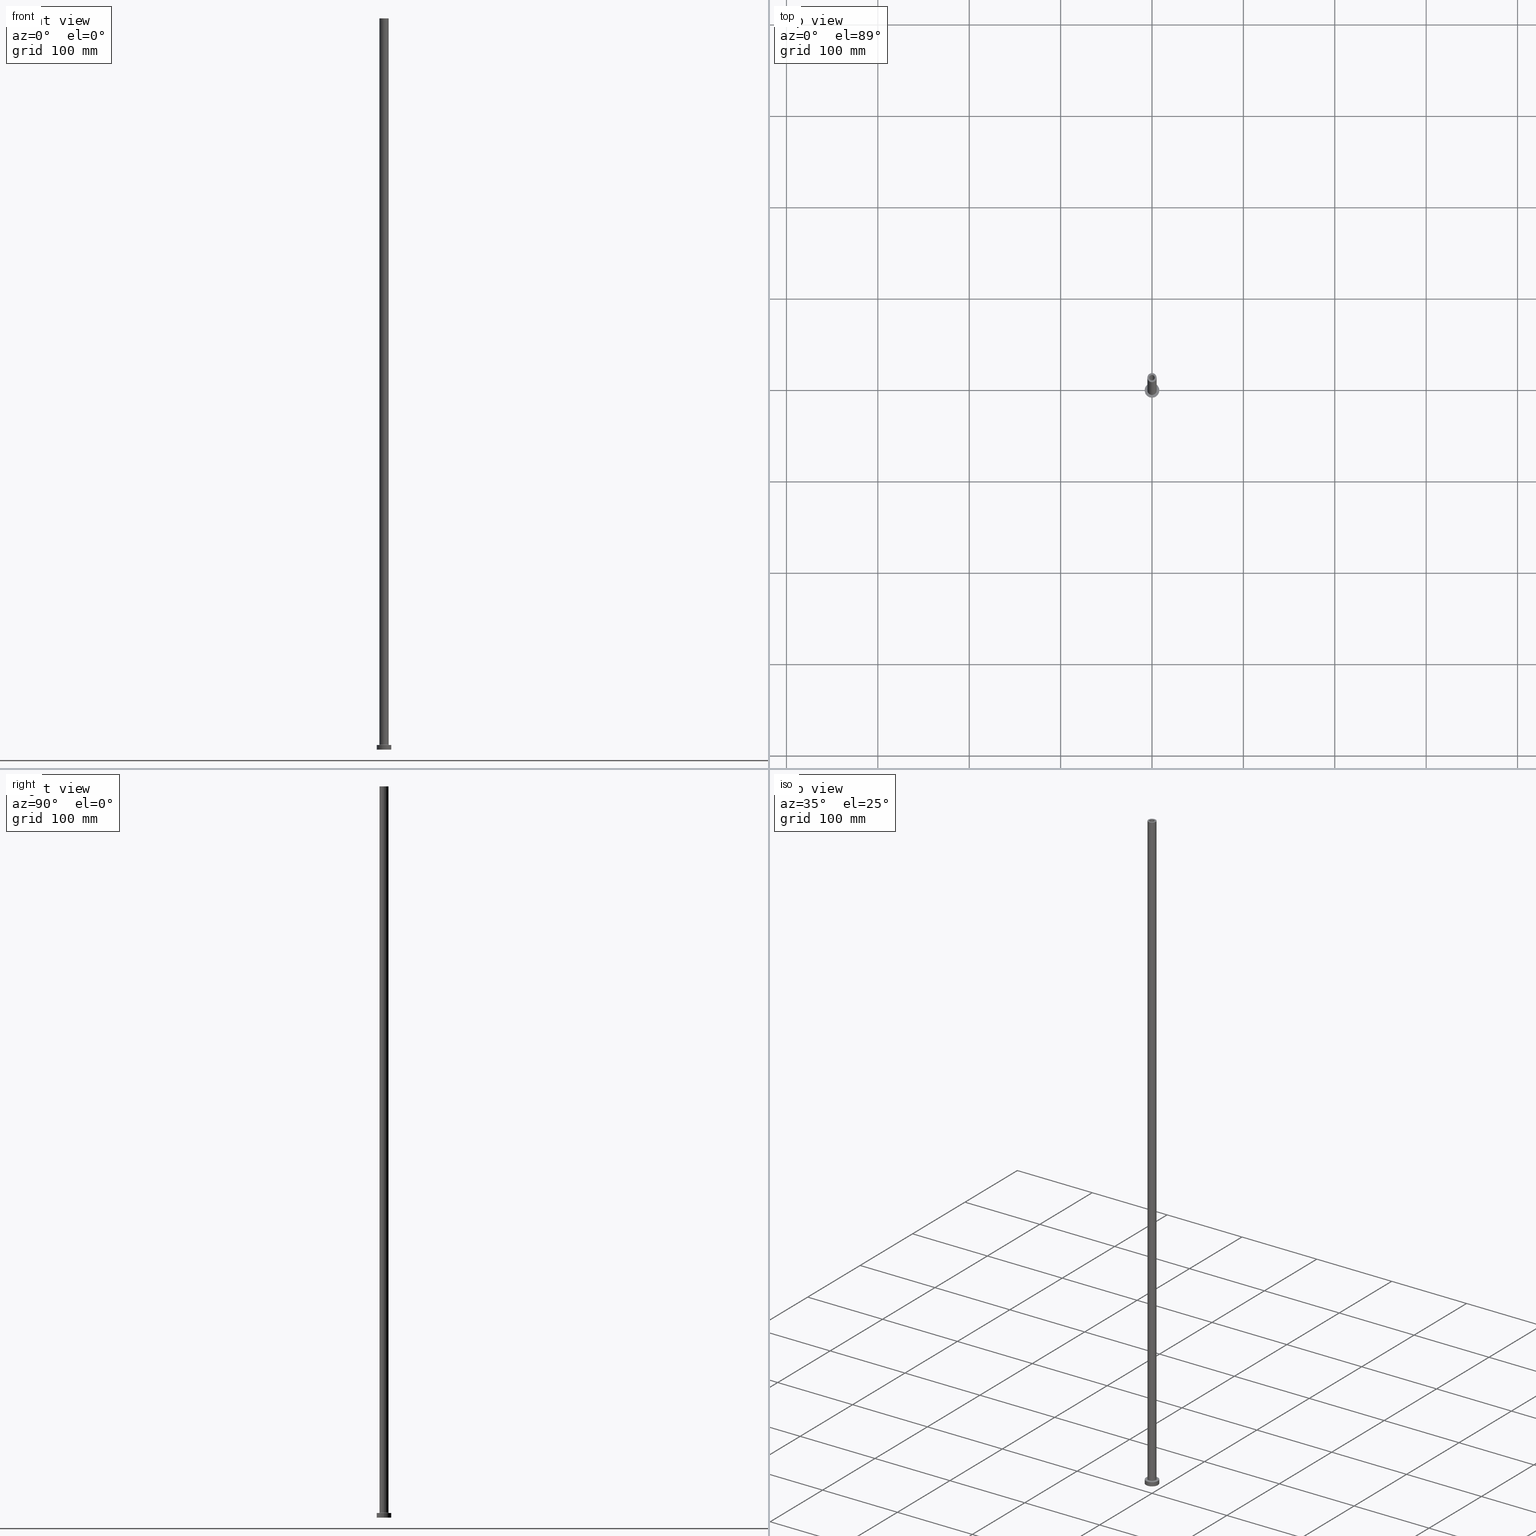
[diagram: canonical four-view strip — front | top / right | iso, engineering-drawing reading convention]
A machine part, canonical four-view strip (front | top / right | iso — engineering-drawing reading convention). The complete STEP part file that produces these views, byte-faithful:
ISO-10303-21;
HEADER;
FILE_DESCRIPTION (( 'STEP AP203' ),
    '1' );
FILE_NAME ('d898.STEP',
    '2023-02-13T15:28:38',
    ( '' ),
    ( '' ),
    'SwSTEP 2.0',
    'SolidWorks 2019',
    '' );
FILE_SCHEMA (( 'CONFIG_CONTROL_DESIGN' ));
ENDSEC;

DATA;
#1 = DIRECTION ( 'NONE',  ( -1.000000000000000000, 0.000000000000000000, 0.000000000000000000 ) ) ;
#2 = PERSON_AND_ORGANIZATION ( #380, #193 ) ;
#3 = PRODUCT_DEFINITION_SHAPE ( 'NONE', 'NONE',  #243 ) ;
#4 = EDGE_CURVE ( 'NONE', #36, #454, #199, .T. ) ;
#5 = CARTESIAN_POINT ( 'NONE',  ( 0.000000000000000000, 0.000000000000000000, 5.499999999999949374 ) ) ;
#6 = CIRCLE ( 'NONE', #30, 3.000000000000000444 ) ;
#7 = DIRECTION ( 'NONE',  ( -1.000000000000000000, 0.000000000000000000, 0.000000000000000000 ) ) ;
#8 = DIRECTION ( 'NONE',  ( -0.000000000000000000, -0.000000000000000000, -1.000000000000000000 ) ) ;
#9 = APPROVAL_STATUS ( 'not_yet_approved' ) ;
#10 = CARTESIAN_POINT ( 'NONE',  ( -3.000000000000000444, 0.000000000000000000, 755.0000000000000000 ) ) ;
#11 = ORIENTED_EDGE ( 'NONE', *, *, #351, .T. ) ;
#12 = ADVANCED_FACE ( 'NONE', ( #151 ), #294, .T. ) ;
#13 = CARTESIAN_POINT ( 'NONE',  ( 0.000000000000000000, 0.000000000000000000, 800.0000000000000000 ) ) ;
#14 = CARTESIAN_POINT ( 'NONE',  ( 3.000000000000000444, 3.673940397442060361E-16, 800.0000000000000000 ) ) ;
#15 = CIRCLE ( 'NONE', #274, 5.000000000000000000 ) ;
#16 = CIRCLE ( 'NONE', #179, 5.500000000000000000 ) ;
#17 = CARTESIAN_POINT ( 'NONE',  ( -5.000000000000000000, 0.000000000000000000, 5.499999999999949374 ) ) ;
#18 = FACE_OUTER_BOUND ( 'NONE', #117, .T. ) ;
#19 = CARTESIAN_POINT ( 'NONE',  ( -5.000000000000000000, 0.000000000000000000, 800.0000000000000000 ) ) ;
#20 = DIRECTION ( 'NONE',  ( 0.000000000000000000, 0.000000000000000000, 1.000000000000000000 ) ) ;
#21 = ORIENTED_EDGE ( 'NONE', *, *, #80, .T. ) ;
#22 = EDGE_CURVE ( 'NONE', #454, #36, #15, .T. ) ;
#23 = FACE_BOUND ( 'NONE', #299, .T. ) ;
#24 = AXIS2_PLACEMENT_3D ( 'NONE', #256, #368, #369 ) ;
#25 = AXIS2_PLACEMENT_3D ( 'NONE', #153, #287, #110 ) ;
#26 = ADVANCED_FACE ( 'NONE', ( #18 ), #408, .F. ) ;
#27 = ORIENTED_EDGE ( 'NONE', *, *, #407, .T. ) ;
#28 = EDGE_LOOP ( 'NONE', ( #214, #84 ) ) ;
#29 = COORDINATED_UNIVERSAL_TIME_OFFSET ( 1, 0, .AHEAD. ) ;
#30 = AXIS2_PLACEMENT_3D ( 'NONE', #416, #222, #258 ) ;
#31 = LOCAL_TIME ( 16, 28, 38.00000000000000000, #46 ) ;
#32 = DIRECTION ( 'NONE',  ( -0.000000000000000000, -0.000000000000000000, -1.000000000000000000 ) ) ;
#33 = ORIENTED_EDGE ( 'NONE', *, *, #216, .T. ) ;
#34 = PERSON_AND_ORGANIZATION_ROLE ( 'creator' ) ;
#35 = DATE_AND_TIME ( #233, #457 ) ;
#36 = VERTEX_POINT ( 'NONE', #377 ) ;
#37 = APPROVAL ( #98, 'NEUR�EN�' ) ;
#38 = DIRECTION ( 'NONE',  ( 1.000000000000000000, 0.000000000000000000, 0.000000000000000000 ) ) ;
#39 = CIRCLE ( 'NONE', #144, 0.5000000000000004441 ) ;
#40 = CARTESIAN_POINT ( 'NONE',  ( 0.000000000000000000, 0.000000000000000000, 763.9095454429503889 ) ) ;
#41 = CARTESIAN_POINT ( 'NONE',  ( 0.000000000000000000, 0.000000000000000000, 0.000000000000000000 ) ) ;
#42 = CALENDAR_DATE ( 2023, 13, 2 ) ;
#43 = CARTESIAN_POINT ( 'NONE',  ( -5.500000000000000000, 6.735557395310442023E-16, 5.499999999999949374 ) ) ;
#44 = ORIENTED_EDGE ( 'NONE', *, *, #313, .T. ) ;
#45 = CARTESIAN_POINT ( 'NONE',  ( -3.000000000000000444, 0.000000000000000000, 800.0000000000000000 ) ) ;
#46 = COORDINATED_UNIVERSAL_TIME_OFFSET ( 1, 0, .AHEAD. ) ;
#47 = VECTOR ( 'NONE', #87, 1000.000000000000000 ) ;
#48 = CARTESIAN_POINT ( 'NONE',  ( 5.500000000000000000, 0.000000000000000000, 5.499999999999949374 ) ) ;
#49 = DATE_TIME_ROLE ( 'classification_date' ) ;
#50 = EDGE_LOOP ( 'NONE', ( #66, #128 ) ) ;
#51 = FACE_BOUND ( 'NONE', #410, .T. ) ;
#52 = CYLINDRICAL_SURFACE ( 'NONE', #152, 8.000000000000000000 ) ;
#53 = DIRECTION ( 'NONE',  ( -0.000000000000000000, -0.000000000000000000, -1.000000000000000000 ) ) ;
#54 = AXIS2_PLACEMENT_3D ( 'NONE', #180, #254, #440 ) ;
#55 = CIRCLE ( 'NONE', #130, 3.000000000000000444 ) ;
#56 = CARTESIAN_POINT ( 'NONE',  ( 8.000000000000000000, 9.797174393178825657E-16, 5.000000000000000000 ) ) ;
#57 = EDGE_CURVE ( 'NONE', #350, #426, #58, .T. ) ;
#58 = LINE ( 'NONE', #262, #123 ) ;
#59 = DIRECTION ( 'NONE',  ( 1.000000000000000000, 0.000000000000000000, 0.000000000000000000 ) ) ;
#60 = ORIENTED_EDGE ( 'NONE', *, *, #216, .F. ) ;
#61 = EDGE_CURVE ( 'NONE', #312, #400, #268, .T. ) ;
#62 = DIRECTION ( 'NONE',  ( 0.000000000000000000, 0.000000000000000000, 1.000000000000000000 ) ) ;
#63 = ORIENTED_EDGE ( 'NONE', *, *, #111, .T. ) ;
#64 = DIRECTION ( 'NONE',  ( -1.000000000000000000, 0.000000000000000000, 0.000000000000000000 ) ) ;
#65 = AXIS2_PLACEMENT_3D ( 'NONE', #290, #226, #59 ) ;
#66 = ORIENTED_EDGE ( 'NONE', *, *, #4, .T. ) ;
#67 = ORIENTED_EDGE ( 'NONE', *, *, #297, .F. ) ;
#68 = VERTEX_POINT ( 'NONE', #10 ) ;
#69 = APPROVAL_DATE_TIME ( #95, #450 ) ;
#70 = ORIENTED_EDGE ( 'NONE', *, *, #324, .T. ) ;
#71 = DIRECTION ( 'NONE',  ( 0.000000000000000000, 0.000000000000000000, 1.000000000000000000 ) ) ;
#72 = CC_DESIGN_PERSON_AND_ORGANIZATION_ASSIGNMENT ( #390, #163, ( #328 ) ) ;
#73 = LINE ( 'NONE', #249, #114 ) ;
#74 = DIRECTION ( 'NONE',  ( -0.000000000000000000, -0.000000000000000000, -1.000000000000000000 ) ) ;
#75 = ORIENTED_EDGE ( 'NONE', *, *, #111, .F. ) ;
#76 = PERSON_AND_ORGANIZATION ( #380, #193 ) ;
#77 = DIRECTION ( 'NONE',  ( -1.000000000000000000, 0.000000000000000000, 0.000000000000000000 ) ) ;
#78 = CYLINDRICAL_SURFACE ( 'NONE', #124, 5.000000000000000000 ) ;
#79 = APPROVAL_ROLE ( '' ) ;
#80 = EDGE_CURVE ( 'NONE', #426, #142, #129, .T. ) ;
#81 = CARTESIAN_POINT ( 'NONE',  ( 0.000000000000000000, 0.000000000000000000, 0.000000000000000000 ) ) ;
#82 = ADVANCED_FACE ( 'NONE', ( #116 ), #320, .F. ) ;
#83 = CARTESIAN_POINT ( 'NONE',  ( 0.000000000000000000, 0.000000000000000000, 5.000000000000000000 ) ) ;
#84 = ORIENTED_EDGE ( 'NONE', *, *, #61, .F. ) ;
#85 = CARTESIAN_POINT ( 'NONE',  ( 3.150000000000000355, 3.857637417314163182E-16, 763.9095454429503889 ) ) ;
#86 = AXIS2_PLACEMENT_3D ( 'NONE', #277, #174, #431 ) ;
#87 = DIRECTION ( 'NONE',  ( 0.000000000000000000, 0.000000000000000000, -1.000000000000000000 ) ) ;
#88 = ORIENTED_EDGE ( 'NONE', *, *, #80, .F. ) ;
#89 = CARTESIAN_POINT ( 'NONE',  ( 3.150000000000000355, 3.857637417314163182E-16, 0.000000000000000000 ) ) ;
#90 = EDGE_LOOP ( 'NONE', ( #389, #345, #266, #318 ) ) ;
#91 = AXIS2_PLACEMENT_3D ( 'NONE', #423, #234, #230 ) ;
#92 = CARTESIAN_POINT ( 'NONE',  ( 0.000000000000000000, 0.000000000000000000, 763.9095454429503889 ) ) ;
#93 = ORIENTED_EDGE ( 'NONE', *, *, #280, .F. ) ;
#94 = ORIENTED_EDGE ( 'NONE', *, *, #430, .F. ) ;
#95 = DATE_AND_TIME ( #311, #270 ) ;
#96 = EDGE_CURVE ( 'NONE', #227, #350, #455, .T. ) ;
#97 = EDGE_LOOP ( 'NONE', ( #165, #310, #27, #44 ) ) ;
#98 = APPROVAL_STATUS ( 'not_yet_approved' ) ;
#99 = AXIS2_PLACEMENT_3D ( 'NONE', #40, #317, #1 ) ;
#100 = CARTESIAN_POINT ( 'NONE',  ( 0.000000000000000000, 0.000000000000000000, 755.0000000000000000 ) ) ;
#101 = CARTESIAN_POINT ( 'NONE',  ( -5.500000000000000000, 6.735557395310442023E-16, 4.999999999999975131 ) ) ;
#102 = ADVANCED_FACE ( 'NONE', ( #156, #399 ), #293, .T. ) ;
#103 = LINE ( 'NONE', #398, #365 ) ;
#104 = PERSON_AND_ORGANIZATION_ROLE ( 'design_supplier' ) ;
#105 = CIRCLE ( 'NONE', #217, 5.000000000000000000 ) ;
#106 = CC_DESIGN_SECURITY_CLASSIFICATION ( #335, ( #132 ) ) ;
#107 = EDGE_LOOP ( 'NONE', ( #223, #63, #248, #202 ) ) ;
#108 = DATE_AND_TIME ( #210, #276 ) ;
#109 = FACE_OUTER_BOUND ( 'NONE', #204, .T. ) ;
#110 = DIRECTION ( 'NONE',  ( 1.000000000000000000, 0.000000000000000000, 0.000000000000000000 ) ) ;
#111 = EDGE_CURVE ( 'NONE', #232, #386, #39, .T. ) ;
#112 = DIRECTION ( 'NONE',  ( 0.000000000000000000, 0.000000000000000000, 1.000000000000000000 ) ) ;
#113 = DIRECTION ( 'NONE',  ( -0.000000000000000000, -0.000000000000000000, -1.000000000000000000 ) ) ;
#114 = VECTOR ( 'NONE', #8, 1000.000000000000000 ) ;
#115 = ORIENTED_EDGE ( 'NONE', *, *, #96, .F. ) ;
#116 = FACE_OUTER_BOUND ( 'NONE', #107, .T. ) ;
#117 = EDGE_LOOP ( 'NONE', ( #33, #264, #379, #67 ) ) ;
#118 = DIRECTION ( 'NONE',  ( -0.000000000000000000, -0.000000000000000000, -1.000000000000000000 ) ) ;
#119 = EDGE_LOOP ( 'NONE', ( #342, #11 ) ) ;
#120 = CARTESIAN_POINT ( 'NONE',  ( 5.500000000000000000, 0.000000000000000000, 4.999999999999975131 ) ) ;
#121 = ADVANCED_BREP_SHAPE_REPRESENTATION ( 'd898', ( #326, #186 ), #343 ) ;
#122 = LINE ( 'NONE', #19, #231 ) ;
#123 = VECTOR ( 'NONE', #286, 1000.000000000000000 ) ;
#124 = AXIS2_PLACEMENT_3D ( 'NONE', #363, #361, #7 ) ;
#125 = FACE_OUTER_BOUND ( 'NONE', #28, .T. ) ;
#126 = ORIENTED_EDGE ( 'NONE', *, *, #183, .F. ) ;
#127 = APPLICATION_CONTEXT ( 'configuration controlled 3d designs of mechanical parts and assemblies' ) ;
#128 = ORIENTED_EDGE ( 'NONE', *, *, #22, .T. ) ;
#129 = CIRCLE ( 'NONE', #396, 3.150000000000000355 ) ;
#130 = AXIS2_PLACEMENT_3D ( 'NONE', #228, #447, #159 ) ;
#131 = EDGE_LOOP ( 'NONE', ( #60, #171 ) ) ;
#132 = PRODUCT_DEFINITION_FORMATION_WITH_SPECIFIED_SOURCE ( 'LIBOVOLN�', '', #328, .NOT_KNOWN. ) ;
#133 = DIRECTION ( 'NONE',  ( 0.000000000000000000, 0.000000000000000000, 1.000000000000000000 ) ) ;
#134 = ORIENTED_EDGE ( 'NONE', *, *, #430, .T. ) ;
#135 = APPROVAL_ROLE ( '' ) ;
#136 = EDGE_CURVE ( 'NONE', #232, #352, #105, .T. ) ;
#137 = ORIENTED_EDGE ( 'NONE', *, *, #434, .T. ) ;
#138 = CARTESIAN_POINT ( 'NONE',  ( 0.000000000000000000, 0.000000000000000000, 0.000000000000000000 ) ) ;
#139 = CIRCLE ( 'NONE', #405, 3.000000000000000444 ) ;
#140 = DIRECTION ( 'NONE',  ( 0.000000000000000000, 0.000000000000000000, -1.000000000000000000 ) ) ;
#141 = COORDINATED_UNIVERSAL_TIME_OFFSET ( 1, 0, .AHEAD. ) ;
#142 = VERTEX_POINT ( 'NONE', #89 ) ;
#143 = DIRECTION ( 'NONE',  ( 0.000000000000000000, 0.000000000000000000, 1.000000000000000000 ) ) ;
#144 = AXIS2_PLACEMENT_3D ( 'NONE', #43, #284, #157 ) ;
#145 = LINE ( 'NONE', #245, #391 ) ;
#146 = APPLICATION_CONTEXT ( 'configuration controlled 3d designs of mechanical parts and assemblies' ) ;
#147 = CC_DESIGN_PERSON_AND_ORGANIZATION_ASSIGNMENT ( #250, #402, ( #132 ) ) ;
#148 = ORIENTED_EDGE ( 'NONE', *, *, #22, .F. ) ;
#149 = DIRECTION ( 'NONE',  ( -0.000000000000000000, -0.000000000000000000, -1.000000000000000000 ) ) ;
#150 = DIRECTION ( 'NONE',  ( 1.000000000000000000, 0.000000000000000000, 0.000000000000000000 ) ) ;
#151 = FACE_OUTER_BOUND ( 'NONE', #191, .T. ) ;
#152 = AXIS2_PLACEMENT_3D ( 'NONE', #325, #330, #298 ) ;
#153 = CARTESIAN_POINT ( 'NONE',  ( 0.000000000000000000, 0.000000000000000000, 5.000000000000000000 ) ) ;
#154 = LOCAL_TIME ( 16, 28, 38.00000000000000000, #141 ) ;
#155 =( NAMED_UNIT ( * ) SI_UNIT ( $, .STERADIAN. ) SOLID_ANGLE_UNIT ( ) );
#156 = FACE_BOUND ( 'NONE', #119, .T. ) ;
#157 = DIRECTION ( 'NONE',  ( -1.000000000000000000, 1.224646799147351482E-16, 0.000000000000000000 ) ) ;
#158 = ORIENTED_EDGE ( 'NONE', *, *, #303, .T. ) ;
#159 = DIRECTION ( 'NONE',  ( 1.000000000000000000, 0.000000000000000000, 0.000000000000000000 ) ) ;
#160 = EDGE_CURVE ( 'NONE', #454, #352, #409, .T. ) ;
#161 = CIRCLE ( 'NONE', #167, 3.150000000000000355 ) ;
#162 = CARTESIAN_POINT ( 'NONE',  ( -8.000000000000000000, 0.000000000000000000, 5.000000000000000000 ) ) ;
#163 = PERSON_AND_ORGANIZATION_ROLE ( 'design_owner' ) ;
#164 = FACE_OUTER_BOUND ( 'NONE', #251, .T. ) ;
#165 = ORIENTED_EDGE ( 'NONE', *, *, #324, .F. ) ;
#166 = CYLINDRICAL_SURFACE ( 'NONE', #436, 3.150000000000000355 ) ;
#167 = AXIS2_PLACEMENT_3D ( 'NONE', #100, #285, #439 ) ;
#168 = ORIENTED_EDGE ( 'NONE', *, *, #434, .F. ) ;
#169 = EDGE_CURVE ( 'NONE', #68, #375, #55, .T. ) ;
#170 = EDGE_LOOP ( 'NONE', ( #240, #134 ) ) ;
#171 = ORIENTED_EDGE ( 'NONE', *, *, #267, .F. ) ;
#172 = ADVANCED_FACE ( 'NONE', ( #23, #125 ), #296, .F. ) ;
#173 = FACE_OUTER_BOUND ( 'NONE', #427, .T. ) ;
#174 = DIRECTION ( 'NONE',  ( 0.000000000000000000, 0.000000000000000000, 1.000000000000000000 ) ) ;
#175 = ORIENTED_EDGE ( 'NONE', *, *, #160, .F. ) ;
#176 = CARTESIAN_POINT ( 'NONE',  ( -3.150000000000000355, 0.000000000000000000, 755.0000000000000000 ) ) ;
#177 = CALENDAR_DATE ( 2023, 13, 2 ) ;
#178 = EDGE_CURVE ( 'NONE', #194, #386, #347, .T. ) ;
#179 = AXIS2_PLACEMENT_3D ( 'NONE', #212, #149, #38 ) ;
#180 = CARTESIAN_POINT ( 'NONE',  ( 0.000000000000000000, 0.000000000000000000, 0.000000000000000000 ) ) ;
#181 = ORIENTED_EDGE ( 'NONE', *, *, #183, .T. ) ;
#182 = DATE_TIME_ROLE ( 'creation_date' ) ;
#183 = EDGE_CURVE ( 'NONE', #227, #142, #374, .T. ) ;
#184 = AXIS2_PLACEMENT_3D ( 'NONE', #5, #406, #371 ) ;
#185 = CARTESIAN_POINT ( 'NONE',  ( 0.000000000000000000, 0.000000000000000000, 755.0000000000000000 ) ) ;
#186 = AXIS2_PLACEMENT_3D ( 'NONE', #138, #71, #205 ) ;
#187 = DIRECTION ( 'NONE',  ( 0.000000000000000000, 0.000000000000000000, 1.000000000000000000 ) ) ;
#188 = CARTESIAN_POINT ( 'NONE',  ( 0.000000000000000000, 0.000000000000000000, 5.499999999999949374 ) ) ;
#189 = DIRECTION ( 'NONE',  ( -0.000000000000000000, -0.000000000000000000, -1.000000000000000000 ) ) ;
#190 = PLANE ( 'NONE',  #292 ) ;
#191 = EDGE_LOOP ( 'NONE', ( #94, #70, #360, #458 ) ) ;
#192 = CC_DESIGN_DATE_AND_TIME_ASSIGNMENT ( #321, #49, ( #335 ) ) ;
#193 = ORGANIZATION ( 'NEUR�EN�', 'NEUR�EN�', '' ) ;
#194 = VERTEX_POINT ( 'NONE', #120 ) ;
#195 = CARTESIAN_POINT ( 'NONE',  ( 0.000000000000000000, 0.000000000000000000, 800.0000000000000000 ) ) ;
#196 = EDGE_CURVE ( 'NONE', #375, #68, #6, .T. ) ;
#197 = VERTEX_POINT ( 'NONE', #56 ) ;
#198 = APPROVAL_ROLE ( '' ) ;
#199 = CIRCLE ( 'NONE', #24, 5.000000000000000000 ) ;
#200 = DIRECTION ( 'NONE',  ( 1.000000000000000000, 0.000000000000000000, 0.000000000000000000 ) ) ;
#201 = CIRCLE ( 'NONE', #300, 3.150000000000000355 ) ;
#202 = ORIENTED_EDGE ( 'NONE', *, *, #303, .F. ) ;
#203 = PERSON_AND_ORGANIZATION ( #380, #193 ) ;
#204 = EDGE_LOOP ( 'NONE', ( #75, #93, #158, #259 ) ) ;
#205 = DIRECTION ( 'NONE',  ( 1.000000000000000000, 0.000000000000000000, 0.000000000000000000 ) ) ;
#206 = DIRECTION ( 'NONE',  ( -1.000000000000000000, 0.000000000000000000, 0.000000000000000000 ) ) ;
#207 = PERSON_AND_ORGANIZATION ( #380, #193 ) ;
#208 = CYLINDRICAL_SURFACE ( 'NONE', #449, 3.000000000000000444 ) ;
#209 = AXIS2_PLACEMENT_3D ( 'NONE', #372, #113, #77 ) ;
#210 = CALENDAR_DATE ( 2023, 13, 2 ) ;
#211 = TOROIDAL_SURFACE ( 'NONE', #86, 5.500000000000000000, 0.5000000000000000000 ) ;
#212 = CARTESIAN_POINT ( 'NONE',  ( 0.000000000000000000, 0.000000000000000000, 5.000000000000000000 ) ) ;
#213 = CARTESIAN_POINT ( 'NONE',  ( 0.000000000000000000, 0.000000000000000000, 5.000000000000000000 ) ) ;
#214 = ORIENTED_EDGE ( 'NONE', *, *, #313, .F. ) ;
#215 = PERSON_AND_ORGANIZATION_ROLE ( 'classification_officer' ) ;
#216 = EDGE_CURVE ( 'NONE', #340, #419, #139, .T. ) ;
#217 = AXIS2_PLACEMENT_3D ( 'NONE', #188, #370, #218 ) ;
#218 = DIRECTION ( 'NONE',  ( 1.000000000000000000, 0.000000000000000000, 0.000000000000000000 ) ) ;
#219 = ADVANCED_FACE ( 'NONE', ( #51, #378 ), #190, .F. ) ;
#220 = CARTESIAN_POINT ( 'NONE',  ( 0.000000000000000000, 0.000000000000000000, 800.0000000000000000 ) ) ;
#221 = VERTEX_POINT ( 'NONE', #162 ) ;
#222 = DIRECTION ( 'NONE',  ( 0.000000000000000000, 0.000000000000000000, 1.000000000000000000 ) ) ;
#223 = ORIENTED_EDGE ( 'NONE', *, *, #136, .F. ) ;
#224 = DIRECTION ( 'NONE',  ( -1.000000000000000000, 0.000000000000000000, 0.000000000000000000 ) ) ;
#225 = FACE_OUTER_BOUND ( 'NONE', #97, .T. ) ;
#226 = DIRECTION ( 'NONE',  ( 0.000000000000000000, 0.000000000000000000, 1.000000000000000000 ) ) ;
#227 = VERTEX_POINT ( 'NONE', #327 ) ;
#228 = CARTESIAN_POINT ( 'NONE',  ( 0.000000000000000000, 0.000000000000000000, 755.0000000000000000 ) ) ;
#229 = APPROVAL ( #9, 'NEUR�EN�' ) ;
#230 = DIRECTION ( 'NONE',  ( 1.000000000000000000, 0.000000000000000000, -0.000000000000000000 ) ) ;
#231 = VECTOR ( 'NONE', #118, 1000.000000000000000 ) ;
#232 = VERTEX_POINT ( 'NONE', #17 ) ;
#233 = CALENDAR_DATE ( 2023, 13, 2 ) ;
#234 = DIRECTION ( 'NONE',  ( 0.000000000000000000, 0.000000000000000000, 1.000000000000000000 ) ) ;
#235 = ORIENTED_EDGE ( 'NONE', *, *, #160, .T. ) ;
#236 = DIRECTION ( 'NONE',  ( 1.000000000000000000, 0.000000000000000000, 0.000000000000000000 ) ) ;
#237 = ORIENTED_EDGE ( 'NONE', *, *, #362, .F. ) ;
#238 = SHAPE_DEFINITION_REPRESENTATION ( #3, #121 ) ;
#239 = CIRCLE ( 'NONE', #261, 8.000000000000000000 ) ;
#240 = ORIENTED_EDGE ( 'NONE', *, *, #241, .T. ) ;
#241 = EDGE_CURVE ( 'NONE', #221, #197, #308, .T. ) ;
#242 = FACE_OUTER_BOUND ( 'NONE', #90, .T. ) ;
#243 = PRODUCT_DEFINITION ( 'NEZN�M�', '', #132, #452 ) ;
#244 = DIRECTION ( 'NONE',  ( 1.000000000000000000, 0.000000000000000000, 0.000000000000000000 ) ) ;
#245 = CARTESIAN_POINT ( 'NONE',  ( 3.000000000000000444, 3.673940397442060361E-16, 800.0000000000000000 ) ) ;
#246 = VECTOR ( 'NONE', #255, 1000.000000000000000 ) ;
#247 = ADVANCED_FACE ( 'NONE', ( #301, #441 ), #453, .T. ) ;
#248 = ORIENTED_EDGE ( 'NONE', *, *, #178, .F. ) ;
#249 = CARTESIAN_POINT ( 'NONE',  ( 8.000000000000000000, 9.797174393178825657E-16, 5.000000000000000000 ) ) ;
#250 = PERSON_AND_ORGANIZATION ( #380, #193 ) ;
#251 = EDGE_LOOP ( 'NONE', ( #424, #181, #435, #273 ) ) ;
#252 = CARTESIAN_POINT ( 'NONE',  ( 8.000000000000000000, 9.797174393178825657E-16, 0.000000000000000000 ) ) ;
#253 = ADVANCED_FACE ( 'NONE', ( #164 ), #166, .F. ) ;
#254 = DIRECTION ( 'NONE',  ( 0.000000000000000000, 0.000000000000000000, 1.000000000000000000 ) ) ;
#255 = DIRECTION ( 'NONE',  ( -0.000000000000000000, -0.000000000000000000, -1.000000000000000000 ) ) ;
#256 = CARTESIAN_POINT ( 'NONE',  ( 0.000000000000000000, 0.000000000000000000, 800.0000000000000000 ) ) ;
#257 = CARTESIAN_POINT ( 'NONE',  ( 0.000000000000000000, 0.000000000000000000, 800.0000000000000000 ) ) ;
#258 = DIRECTION ( 'NONE',  ( 1.000000000000000000, 0.000000000000000000, 0.000000000000000000 ) ) ;
#259 = ORIENTED_EDGE ( 'NONE', *, *, #351, .F. ) ;
#260 = AXIS2_PLACEMENT_3D ( 'NONE', #213, #443, #359 ) ;
#261 = AXIS2_PLACEMENT_3D ( 'NONE', #41, #143, #244 ) ;
#262 = CARTESIAN_POINT ( 'NONE',  ( -3.150000000000000355, 0.000000000000000000, 763.9095454429503889 ) ) ;
#263 = CC_DESIGN_PERSON_AND_ORGANIZATION_ASSIGNMENT ( #203, #34, ( #243 ) ) ;
#264 = ORIENTED_EDGE ( 'NONE', *, *, #344, .T. ) ;
#265 = CARTESIAN_POINT ( 'NONE',  ( 5.000000000000000000, 6.123233995736766282E-16, 800.0000000000000000 ) ) ;
#266 = ORIENTED_EDGE ( 'NONE', *, *, #297, .T. ) ;
#267 = EDGE_CURVE ( 'NONE', #419, #340, #322, .T. ) ;
#268 = CIRCLE ( 'NONE', #54, 8.000000000000000000 ) ;
#269 = AXIS2_PLACEMENT_3D ( 'NONE', #83, #53, #381 ) ;
#270 = LOCAL_TIME ( 16, 28, 38.00000000000000000, #29 ) ;
#271 = ORIENTED_EDGE ( 'NONE', *, *, #136, .T. ) ;
#272 = ORIENTED_EDGE ( 'NONE', *, *, #96, .T. ) ;
#273 = ORIENTED_EDGE ( 'NONE', *, *, #57, .F. ) ;
#274 = AXIS2_PLACEMENT_3D ( 'NONE', #404, #329, #289 ) ;
#275 = CC_DESIGN_PERSON_AND_ORGANIZATION_ASSIGNMENT ( #279, #104, ( #132 ) ) ;
#276 = LOCAL_TIME ( 16, 28, 38.00000000000000000, #358 ) ;
#277 = CARTESIAN_POINT ( 'NONE',  ( 0.000000000000000000, 0.000000000000000000, 5.499999999999949374 ) ) ;
#278 = CARTESIAN_POINT ( 'NONE',  ( -8.000000000000000000, 0.000000000000000000, 0.000000000000000000 ) ) ;
#279 = PERSON_AND_ORGANIZATION ( #380, #193 ) ;
#280 = EDGE_CURVE ( 'NONE', #352, #232, #376, .T. ) ;
#281 = EDGE_LOOP ( 'NONE', ( #126, #272, #459, #21 ) ) ;
#282 = DIRECTION ( 'NONE',  ( 0.000000000000000000, 0.000000000000000000, -1.000000000000000000 ) ) ;
#283 = VECTOR ( 'NONE', #140, 1000.000000000000000 ) ;
#284 = DIRECTION ( 'NONE',  ( 1.224646799147353207E-16, 1.000000000000000000, -0.000000000000000000 ) ) ;
#285 = DIRECTION ( 'NONE',  ( 0.000000000000000000, 0.000000000000000000, 1.000000000000000000 ) ) ;
#286 = DIRECTION ( 'NONE',  ( 0.000000000000000000, 0.000000000000000000, -1.000000000000000000 ) ) ;
#287 = DIRECTION ( 'NONE',  ( 0.000000000000000000, 0.000000000000000000, 1.000000000000000000 ) ) ;
#288 = EDGE_CURVE ( 'NONE', #142, #426, #201, .T. ) ;
#289 = DIRECTION ( 'NONE',  ( 1.000000000000000000, 0.000000000000000000, 0.000000000000000000 ) ) ;
#290 = CARTESIAN_POINT ( 'NONE',  ( 0.000000000000000000, 0.000000000000000000, 5.000000000000000000 ) ) ;
#291 =( LENGTH_UNIT ( ) NAMED_UNIT ( * ) SI_UNIT ( .MILLI., .METRE. ) );
#292 = AXIS2_PLACEMENT_3D ( 'NONE', #331, #187, #337 ) ;
#293 = PLANE ( 'NONE',  #260 ) ;
#294 = CYLINDRICAL_SURFACE ( 'NONE', #209, 8.000000000000000000 ) ;
#295 = CYLINDRICAL_SURFACE ( 'NONE', #421, 5.000000000000000000 ) ;
#296 = PLANE ( 'NONE',  #456 ) ;
#297 = EDGE_CURVE ( 'NONE', #340, #68, #323, .T. ) ;
#298 = DIRECTION ( 'NONE',  ( -1.000000000000000000, 0.000000000000000000, 0.000000000000000000 ) ) ;
#299 = EDGE_LOOP ( 'NONE', ( #88, #346 ) ) ;
#300 = AXIS2_PLACEMENT_3D ( 'NONE', #349, #32, #319 ) ;
#301 = FACE_BOUND ( 'NONE', #131, .T. ) ;
#302 = CARTESIAN_POINT ( 'NONE',  ( 5.000000000000000000, 6.123233995736766282E-16, 800.0000000000000000 ) ) ;
#303 = EDGE_CURVE ( 'NONE', #352, #194, #397, .T. ) ;
#304 = PERSON_AND_ORGANIZATION ( #380, #193 ) ;
#305 = ORIENTED_EDGE ( 'NONE', *, *, #4, .F. ) ;
#306 = COORDINATED_UNIVERSAL_TIME_OFFSET ( 1, 0, .AHEAD. ) ;
#307 = AXIS2_PLACEMENT_3D ( 'NONE', #185, #112, #336 ) ;
#308 = CIRCLE ( 'NONE', #65, 8.000000000000000000 ) ;
#309 = CARTESIAN_POINT ( 'NONE',  ( 0.000000000000000000, 0.000000000000000000, 5.499999999999949374 ) ) ;
#310 = ORIENTED_EDGE ( 'NONE', *, *, #241, .F. ) ;
#311 = CALENDAR_DATE ( 2023, 13, 2 ) ;
#312 = VERTEX_POINT ( 'NONE', #252 ) ;
#313 = EDGE_CURVE ( 'NONE', #400, #312, #239, .T. ) ;
#314 = DIRECTION ( 'NONE',  ( 0.000000000000000000, -1.000000000000000000, 0.000000000000000000 ) ) ;
#315 = AXIS2_PLACEMENT_3D ( 'NONE', #48, #314, #282 ) ;
#316 = DATE_AND_TIME ( #42, #154 ) ;
#317 = DIRECTION ( 'NONE',  ( 0.000000000000000000, 0.000000000000000000, -1.000000000000000000 ) ) ;
#318 = ORIENTED_EDGE ( 'NONE', *, *, #196, .F. ) ;
#319 = DIRECTION ( 'NONE',  ( 1.000000000000000000, 0.000000000000000000, 0.000000000000000000 ) ) ;
#320 = TOROIDAL_SURFACE ( 'NONE', #184, 5.500000000000000000, 0.5000000000000000000 ) ;
#321 = DATE_AND_TIME ( #177, #31 ) ;
#322 = CIRCLE ( 'NONE', #414, 3.000000000000000444 ) ;
#323 = LINE ( 'NONE', #401, #283 ) ;
#324 = EDGE_CURVE ( 'NONE', #197, #312, #73, .T. ) ;
#325 = CARTESIAN_POINT ( 'NONE',  ( 0.000000000000000000, 0.000000000000000000, 5.000000000000000000 ) ) ;
#326 = MANIFOLD_SOLID_BREP ( 'Odebrat vysunut�m4', #413 ) ;
#327 = CARTESIAN_POINT ( 'NONE',  ( 3.150000000000000355, 3.857637417314163182E-16, 755.0000000000000000 ) ) ;
#328 = PRODUCT ( 'd898', 'd898', '', ( #353 ) ) ;
#329 = DIRECTION ( 'NONE',  ( 0.000000000000000000, 0.000000000000000000, 1.000000000000000000 ) ) ;
#330 = DIRECTION ( 'NONE',  ( -0.000000000000000000, -0.000000000000000000, -1.000000000000000000 ) ) ;
#331 = CARTESIAN_POINT ( 'NONE',  ( 0.000000000000000000, 0.000000000000000000, 755.0000000000000000 ) ) ;
#332 = AXIS2_PLACEMENT_3D ( 'NONE', #13, #411, #224 ) ;
#333 =( NAMED_UNIT ( * ) PLANE_ANGLE_UNIT ( ) SI_UNIT ( $, .RADIAN. ) );
#334 = CC_DESIGN_APPROVAL ( #450, ( #243 ) ) ;
#335 = SECURITY_CLASSIFICATION ( '', '', #364 ) ;
#336 = DIRECTION ( 'NONE',  ( 1.000000000000000000, 0.000000000000000000, 0.000000000000000000 ) ) ;
#337 = DIRECTION ( 'NONE',  ( 1.000000000000000000, 0.000000000000000000, -0.000000000000000000 ) ) ;
#338 = ORIENTED_EDGE ( 'NONE', *, *, #169, .T. ) ;
#339 = ADVANCED_FACE ( 'NONE', ( #173 ), #78, .T. ) ;
#340 = VERTEX_POINT ( 'NONE', #45 ) ;
#341 = DIRECTION ( 'NONE',  ( 1.000000000000000000, 0.000000000000000000, -0.000000000000000000 ) ) ;
#342 = ORIENTED_EDGE ( 'NONE', *, *, #178, .T. ) ;
#343 =( GEOMETRIC_REPRESENTATION_CONTEXT ( 3 ) GLOBAL_UNCERTAINTY_ASSIGNED_CONTEXT ( ( #460 ) ) GLOBAL_UNIT_ASSIGNED_CONTEXT ( ( #291, #333, #155 ) ) REPRESENTATION_CONTEXT ( 'NONE', 'WORKASPACE' ) );
#344 = EDGE_CURVE ( 'NONE', #419, #375, #145, .T. ) ;
#345 = ORIENTED_EDGE ( 'NONE', *, *, #267, .T. ) ;
#346 = ORIENTED_EDGE ( 'NONE', *, *, #288, .F. ) ;
#347 = CIRCLE ( 'NONE', #269, 5.500000000000000000 ) ;
#348 = CC_DESIGN_APPROVAL ( #37, ( #335 ) ) ;
#349 = CARTESIAN_POINT ( 'NONE',  ( 0.000000000000000000, 0.000000000000000000, 0.000000000000000000 ) ) ;
#350 = VERTEX_POINT ( 'NONE', #176 ) ;
#351 = EDGE_CURVE ( 'NONE', #386, #194, #16, .T. ) ;
#352 = VERTEX_POINT ( 'NONE', #429 ) ;
#353 = MECHANICAL_CONTEXT ( 'NONE', #146, 'mechanical' ) ;
#354 = CARTESIAN_POINT ( 'NONE',  ( 3.000000000000000444, 3.673940397442060361E-16, 755.0000000000000000 ) ) ;
#355 = CYLINDRICAL_SURFACE ( 'NONE', #99, 3.150000000000000355 ) ;
#356 = APPROVAL_PERSON_ORGANIZATION ( #207, #450, #198 ) ;
#357 = APPROVAL_PERSON_ORGANIZATION ( #2, #229, #79 ) ;
#358 = COORDINATED_UNIVERSAL_TIME_OFFSET ( 1, 0, .AHEAD. ) ;
#359 = DIRECTION ( 'NONE',  ( 1.000000000000000000, 0.000000000000000000, -0.000000000000000000 ) ) ;
#360 = ORIENTED_EDGE ( 'NONE', *, *, #61, .T. ) ;
#361 = DIRECTION ( 'NONE',  ( -0.000000000000000000, -0.000000000000000000, -1.000000000000000000 ) ) ;
#362 = EDGE_CURVE ( 'NONE', #350, #227, #161, .T. ) ;
#363 = CARTESIAN_POINT ( 'NONE',  ( 0.000000000000000000, 0.000000000000000000, 800.0000000000000000 ) ) ;
#364 = SECURITY_CLASSIFICATION_LEVEL ( 'unclassified' ) ;
#365 = VECTOR ( 'NONE', #74, 1000.000000000000000 ) ;
#366 = CC_DESIGN_PERSON_AND_ORGANIZATION_ASSIGNMENT ( #76, #215, ( #335 ) ) ;
#367 = DIRECTION ( 'NONE',  ( -0.000000000000000000, -0.000000000000000000, -1.000000000000000000 ) ) ;
#368 = DIRECTION ( 'NONE',  ( 0.000000000000000000, 0.000000000000000000, 1.000000000000000000 ) ) ;
#369 = DIRECTION ( 'NONE',  ( 1.000000000000000000, 0.000000000000000000, 0.000000000000000000 ) ) ;
#370 = DIRECTION ( 'NONE',  ( 0.000000000000000000, 0.000000000000000000, 1.000000000000000000 ) ) ;
#371 = DIRECTION ( 'NONE',  ( 1.000000000000000000, 0.000000000000000000, 0.000000000000000000 ) ) ;
#372 = CARTESIAN_POINT ( 'NONE',  ( 0.000000000000000000, 0.000000000000000000, 5.000000000000000000 ) ) ;
#373 = ADVANCED_FACE ( 'NONE', ( #242 ), #208, .F. ) ;
#374 = LINE ( 'NONE', #85, #47 ) ;
#375 = VERTEX_POINT ( 'NONE', #354 ) ;
#376 = CIRCLE ( 'NONE', #442, 5.000000000000000000 ) ;
#377 = CARTESIAN_POINT ( 'NONE',  ( -5.000000000000000000, 0.000000000000000000, 800.0000000000000000 ) ) ;
#378 = FACE_OUTER_BOUND ( 'NONE', #451, .T. ) ;
#379 = ORIENTED_EDGE ( 'NONE', *, *, #169, .F. ) ;
#380 = PERSON ( 'NEUR�EN�', 'NEUR�EN�', 'NEUR�EN�', ('NEUR�EN�'), ('NEUR�EN�'), ('NEUR�EN�') ) ;
#381 = DIRECTION ( 'NONE',  ( 1.000000000000000000, 0.000000000000000000, 0.000000000000000000 ) ) ;
#382 = ADVANCED_FACE ( 'NONE', ( #109 ), #211, .F. ) ;
#383 = DIRECTION ( 'NONE',  ( 0.000000000000000000, 0.000000000000000000, -1.000000000000000000 ) ) ;
#384 = ORIENTED_EDGE ( 'NONE', *, *, #196, .T. ) ;
#385 = DIRECTION ( 'NONE',  ( -1.000000000000000000, 0.000000000000000000, 0.000000000000000000 ) ) ;
#386 = VERTEX_POINT ( 'NONE', #101 ) ;
#387 = APPROVAL_STATUS ( 'not_yet_approved' ) ;
#388 = ADVANCED_FACE ( 'NONE', ( #395 ), #355, .F. ) ;
#389 = ORIENTED_EDGE ( 'NONE', *, *, #344, .F. ) ;
#390 = PERSON_AND_ORGANIZATION ( #380, #193 ) ;
#391 = VECTOR ( 'NONE', #432, 1000.000000000000000 ) ;
#392 = DIRECTION ( 'NONE',  ( 0.000000000000000000, 0.000000000000000000, 1.000000000000000000 ) ) ;
#393 = APPROVAL_DATE_TIME ( #35, #37 ) ;
#394 = CARTESIAN_POINT ( 'NONE',  ( 0.000000000000000000, 0.000000000000000000, 800.0000000000000000 ) ) ;
#395 = FACE_OUTER_BOUND ( 'NONE', #281, .T. ) ;
#396 = AXIS2_PLACEMENT_3D ( 'NONE', #81, #367, #150 ) ;
#397 = CIRCLE ( 'NONE', #315, 0.5000000000000004441 ) ;
#398 = CARTESIAN_POINT ( 'NONE',  ( -8.000000000000000000, 0.000000000000000000, 5.000000000000000000 ) ) ;
#399 = FACE_OUTER_BOUND ( 'NONE', #170, .T. ) ;
#400 = VERTEX_POINT ( 'NONE', #278 ) ;
#401 = CARTESIAN_POINT ( 'NONE',  ( -3.000000000000000444, 0.000000000000000000, 800.0000000000000000 ) ) ;
#402 = PERSON_AND_ORGANIZATION_ROLE ( 'creator' ) ;
#403 = CC_DESIGN_DATE_AND_TIME_ASSIGNMENT ( #108, #182, ( #243 ) ) ;
#404 = CARTESIAN_POINT ( 'NONE',  ( 0.000000000000000000, 0.000000000000000000, 800.0000000000000000 ) ) ;
#405 = AXIS2_PLACEMENT_3D ( 'NONE', #220, #62, #412 ) ;
#406 = DIRECTION ( 'NONE',  ( 0.000000000000000000, 0.000000000000000000, 1.000000000000000000 ) ) ;
#407 = EDGE_CURVE ( 'NONE', #221, #400, #103, .T. ) ;
#408 = CYLINDRICAL_SURFACE ( 'NONE', #332, 3.000000000000000444 ) ;
#409 = LINE ( 'NONE', #265, #246 ) ;
#410 = EDGE_LOOP ( 'NONE', ( #338, #384 ) ) ;
#411 = DIRECTION ( 'NONE',  ( 0.000000000000000000, 0.000000000000000000, -1.000000000000000000 ) ) ;
#412 = DIRECTION ( 'NONE',  ( 1.000000000000000000, 0.000000000000000000, 0.000000000000000000 ) ) ;
#413 = CLOSED_SHELL ( 'NONE', ( #26, #253, #82, #438, #12, #417, #102, #172, #339, #247, #382, #388, #219, #373 ) ) ;
#414 = AXIS2_PLACEMENT_3D ( 'NONE', #195, #392, #200 ) ;
#415 = FACE_OUTER_BOUND ( 'NONE', #445, .T. ) ;
#416 = CARTESIAN_POINT ( 'NONE',  ( 0.000000000000000000, 0.000000000000000000, 755.0000000000000000 ) ) ;
#417 = ADVANCED_FACE ( 'NONE', ( #225 ), #52, .T. ) ;
#418 = PRODUCT_RELATED_PRODUCT_CATEGORY ( 'detail', '', ( #328 ) ) ;
#419 = VERTEX_POINT ( 'NONE', #14 ) ;
#420 = APPLICATION_PROTOCOL_DEFINITION ( 'international standard', 'config_control_design', 1994, #146 ) ;
#421 = AXIS2_PLACEMENT_3D ( 'NONE', #257, #189, #64 ) ;
#422 = APPROVAL_PERSON_ORGANIZATION ( #304, #37, #135 ) ;
#423 = CARTESIAN_POINT ( 'NONE',  ( 0.000000000000000000, 0.000000000000000000, 800.0000000000000000 ) ) ;
#424 = ORIENTED_EDGE ( 'NONE', *, *, #362, .T. ) ;
#425 = APPLICATION_PROTOCOL_DEFINITION ( 'international standard', 'config_control_design', 1994, #127 ) ;
#426 = VERTEX_POINT ( 'NONE', #446 ) ;
#427 = EDGE_LOOP ( 'NONE', ( #175, #305, #137, #271 ) ) ;
#428 = CIRCLE ( 'NONE', #25, 8.000000000000000000 ) ;
#429 = CARTESIAN_POINT ( 'NONE',  ( 5.000000000000000000, 6.123233995736766282E-16, 5.499999999999949374 ) ) ;
#430 = EDGE_CURVE ( 'NONE', #197, #221, #428, .T. ) ;
#431 = DIRECTION ( 'NONE',  ( 1.000000000000000000, 0.000000000000000000, 0.000000000000000000 ) ) ;
#432 = DIRECTION ( 'NONE',  ( 0.000000000000000000, 0.000000000000000000, -1.000000000000000000 ) ) ;
#433 = APPROVAL_DATE_TIME ( #316, #229 ) ;
#434 = EDGE_CURVE ( 'NONE', #36, #232, #122, .T. ) ;
#435 = ORIENTED_EDGE ( 'NONE', *, *, #288, .T. ) ;
#436 = AXIS2_PLACEMENT_3D ( 'NONE', #92, #383, #385 ) ;
#437 = CC_DESIGN_APPROVAL ( #229, ( #132 ) ) ;
#438 = ADVANCED_FACE ( 'NONE', ( #415 ), #295, .T. ) ;
#439 = DIRECTION ( 'NONE',  ( 1.000000000000000000, 0.000000000000000000, 0.000000000000000000 ) ) ;
#440 = DIRECTION ( 'NONE',  ( 1.000000000000000000, 0.000000000000000000, 0.000000000000000000 ) ) ;
#441 = FACE_OUTER_BOUND ( 'NONE', #50, .T. ) ;
#442 = AXIS2_PLACEMENT_3D ( 'NONE', #309, #133, #236 ) ;
#443 = DIRECTION ( 'NONE',  ( 0.000000000000000000, 0.000000000000000000, 1.000000000000000000 ) ) ;
#444 = CARTESIAN_POINT ( 'NONE',  ( 0.000000000000000000, 0.000000000000000000, 0.000000000000000000 ) ) ;
#445 = EDGE_LOOP ( 'NONE', ( #148, #235, #448, #168 ) ) ;
#446 = CARTESIAN_POINT ( 'NONE',  ( -3.150000000000000355, 0.000000000000000000, 0.000000000000000000 ) ) ;
#447 = DIRECTION ( 'NONE',  ( 0.000000000000000000, 0.000000000000000000, 1.000000000000000000 ) ) ;
#448 = ORIENTED_EDGE ( 'NONE', *, *, #280, .T. ) ;
#449 = AXIS2_PLACEMENT_3D ( 'NONE', #394, #461, #206 ) ;
#450 = APPROVAL ( #387, 'NEUR�EN�' ) ;
#451 = EDGE_LOOP ( 'NONE', ( #237, #115 ) ) ;
#452 = DESIGN_CONTEXT ( 'detailed design', #127, 'design' ) ;
#453 = PLANE ( 'NONE',  #91 ) ;
#454 = VERTEX_POINT ( 'NONE', #302 ) ;
#455 = CIRCLE ( 'NONE', #307, 3.150000000000000355 ) ;
#456 = AXIS2_PLACEMENT_3D ( 'NONE', #444, #20, #341 ) ;
#457 = LOCAL_TIME ( 16, 28, 38.00000000000000000, #306 ) ;
#458 = ORIENTED_EDGE ( 'NONE', *, *, #407, .F. ) ;
#459 = ORIENTED_EDGE ( 'NONE', *, *, #57, .T. ) ;
#460 = UNCERTAINTY_MEASURE_WITH_UNIT (LENGTH_MEASURE( 1.000000000000000082E-05 ), #291, 'distance_accuracy_value', 'NONE');
#461 = DIRECTION ( 'NONE',  ( 0.000000000000000000, 0.000000000000000000, -1.000000000000000000 ) ) ;
ENDSEC;
END-ISO-10303-21;
